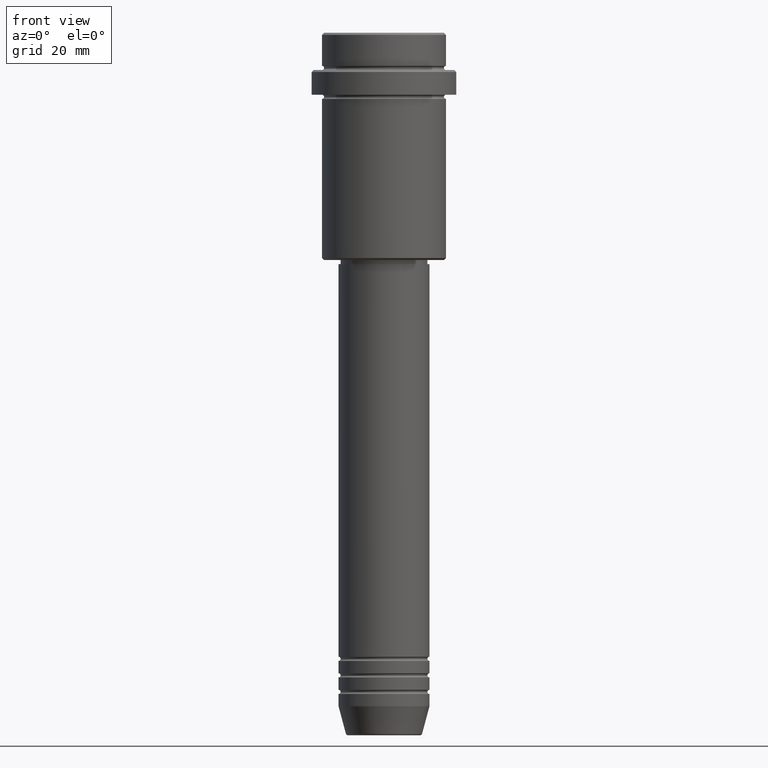
[diagram: clean part render]
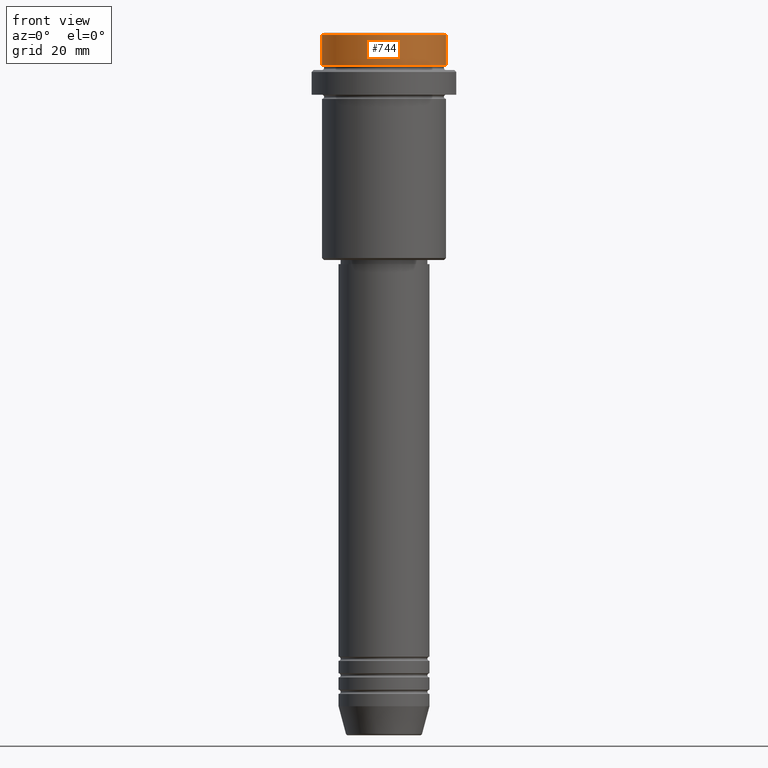
[diagram: same view with one face highlighted and labeled with its STEP entity id]
A machine part, front view. The second image highlights one B-rep face of the part: STEP entity #744.
In plain terms, the highlighted cylindrical surface (partial cylindrical patch) has radius 15 mm, axis along (-0, -0, 1).
Its self-contained STEP definition (entity closure, byte-faithful):
#37 = VECTOR ( 'NONE', #1024, 1000.000000000000000 ) ;
#106 = DIRECTION ( 'NONE',  ( 0.000000000000000000, 0.000000000000000000, -1.000000000000000000 ) ) ;
#110 = DIRECTION ( 'NONE',  ( -0.000000000000000000, -0.000000000000000000, 1.000000000000000000 ) ) ;
#178 = EDGE_CURVE ( 'NONE', #1338, #564, #680, .T. ) ;
#185 = CARTESIAN_POINT ( 'NONE',  ( 0.000000000000000000, 0.000000000000000000, 0.000000000000000000 ) ) ;
#262 = CARTESIAN_POINT ( 'NONE',  ( 15.00000000000000000, 0.000000000000000000, -0.5000000000000386358 ) ) ;
#308 = CARTESIAN_POINT ( 'NONE',  ( 15.00000000000000000, 0.000000000000000000, -7.999999999999998224 ) ) ;
#390 = ORIENTED_EDGE ( 'NONE', *, *, #959, .T. ) ;
#419 = CIRCLE ( 'NONE', #1186, 15.00000000000000000 ) ;
#455 = EDGE_LOOP ( 'NONE', ( #817, #390, #773, #620 ) ) ;
#531 = CARTESIAN_POINT ( 'NONE',  ( -15.00000000000000000, 1.836970198721029589E-15, -0.5000000000000386358 ) ) ;
#539 = DIRECTION ( 'NONE',  ( 1.000000000000000000, 0.000000000000000000, 0.000000000000000000 ) ) ;
#552 = DIRECTION ( 'NONE',  ( 1.000000000000000000, 0.000000000000000000, 0.000000000000000000 ) ) ;
#559 = VERTEX_POINT ( 'NONE', #308 ) ;
#564 = VERTEX_POINT ( 'NONE', #531 ) ;
#620 = ORIENTED_EDGE ( 'NONE', *, *, #178, .T. ) ;
#640 = VECTOR ( 'NONE', #1169, 1000.000000000000000 ) ;
#680 = CIRCLE ( 'NONE', #1274, 15.00000000000000000 ) ;
#703 = AXIS2_PLACEMENT_3D ( 'NONE', #185, #1284, #1057 ) ;
#725 = CYLINDRICAL_SURFACE ( 'NONE', #703, 15.00000000000000000 ) ;
#744 = ADVANCED_FACE ( 'NONE', ( #952 ), #725, .T. ) ;
#757 = CARTESIAN_POINT ( 'NONE',  ( 0.000000000000000000, 0.000000000000000000, -7.999999999999998224 ) ) ;
#773 = ORIENTED_EDGE ( 'NONE', *, *, #810, .T. ) ;
#782 = CARTESIAN_POINT ( 'NONE',  ( 0.000000000000000000, 0.000000000000000000, -0.5000000000000386358 ) ) ;
#810 = EDGE_CURVE ( 'NONE', #559, #1338, #849, .T. ) ;
#817 = ORIENTED_EDGE ( 'NONE', *, *, #1241, .F. ) ;
#825 = CARTESIAN_POINT ( 'NONE',  ( -15.00000000000000000, 1.836970198721029589E-15, 0.000000000000000000 ) ) ;
#849 = LINE ( 'NONE', #1151, #640 ) ;
#886 = CARTESIAN_POINT ( 'NONE',  ( -15.00000000000000000, 1.836970198721029589E-15, -7.999999999999998224 ) ) ;
#952 = FACE_OUTER_BOUND ( 'NONE', #455, .T. ) ;
#959 = EDGE_CURVE ( 'NONE', #1096, #559, #419, .T. ) ;
#1024 = DIRECTION ( 'NONE',  ( -0.000000000000000000, -0.000000000000000000, 1.000000000000000000 ) ) ;
#1057 = DIRECTION ( 'NONE',  ( 1.000000000000000000, 0.000000000000000000, 0.000000000000000000 ) ) ;
#1096 = VERTEX_POINT ( 'NONE', #886 ) ;
#1151 = CARTESIAN_POINT ( 'NONE',  ( 15.00000000000000000, 0.000000000000000000, 0.000000000000000000 ) ) ;
#1169 = DIRECTION ( 'NONE',  ( -0.000000000000000000, -0.000000000000000000, 1.000000000000000000 ) ) ;
#1186 = AXIS2_PLACEMENT_3D ( 'NONE', #757, #110, #539 ) ;
#1241 = EDGE_CURVE ( 'NONE', #1096, #564, #1269, .T. ) ;
#1269 = LINE ( 'NONE', #825, #37 ) ;
#1274 = AXIS2_PLACEMENT_3D ( 'NONE', #782, #106, #552 ) ;
#1284 = DIRECTION ( 'NONE',  ( -0.000000000000000000, -0.000000000000000000, 1.000000000000000000 ) ) ;
#1338 = VERTEX_POINT ( 'NONE', #262 ) ;